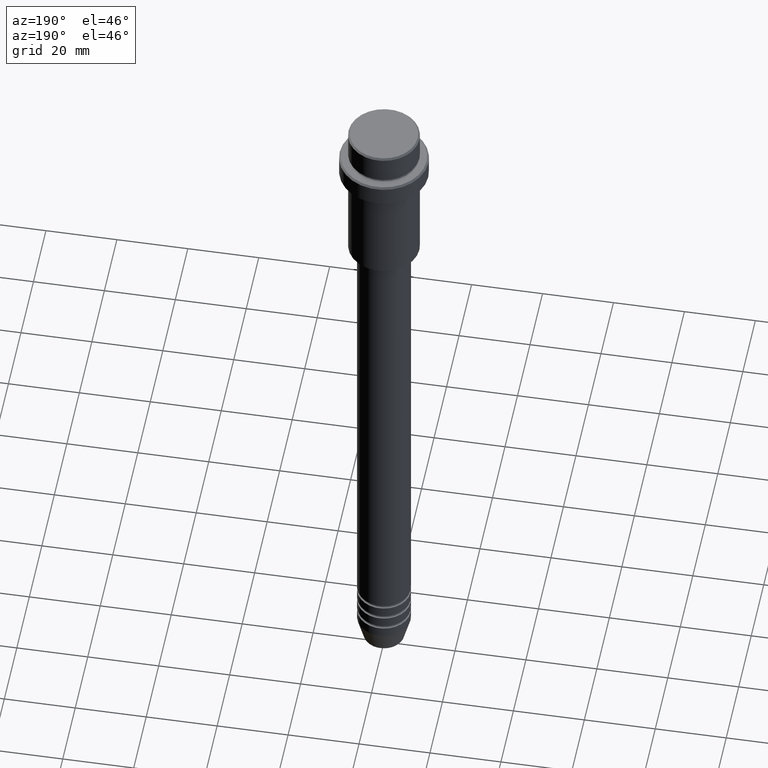
[diagram: clean part render]
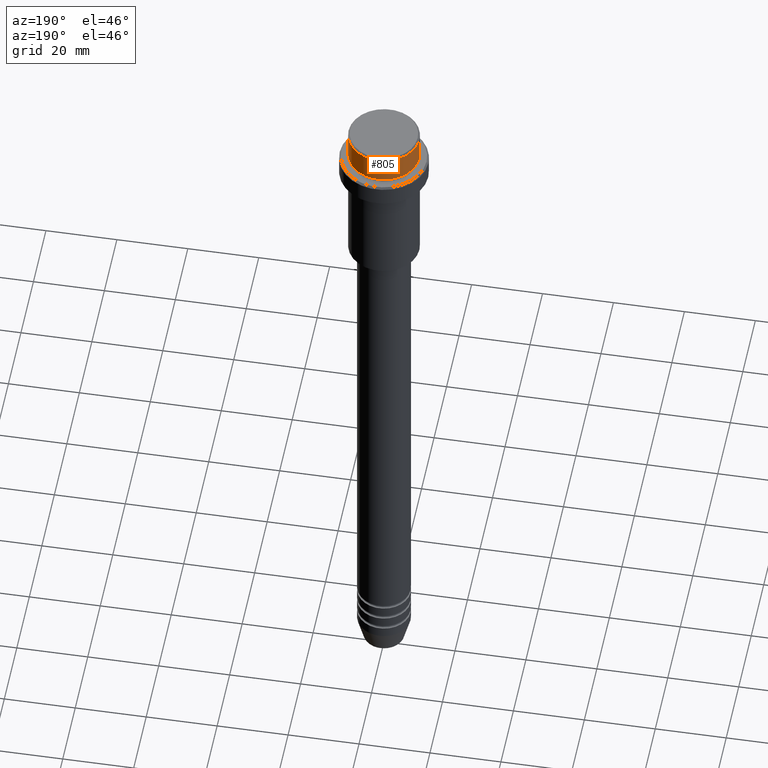
[diagram: same view with one face highlighted and labeled with its STEP entity id]
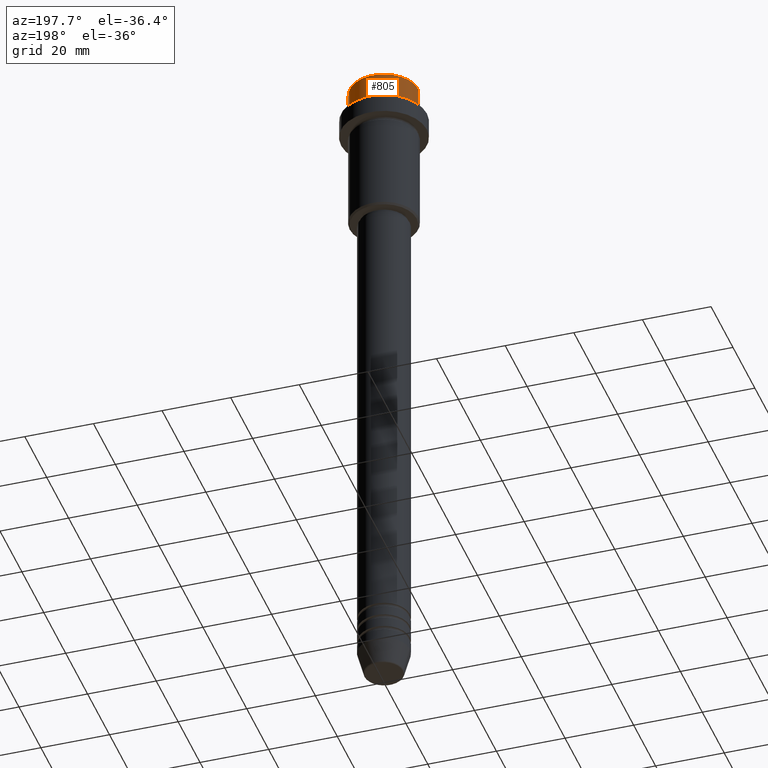
[diagram: same view with one face highlighted and labeled with its STEP entity id]
A machine part, auxiliary view. The second image highlights one B-rep face of the part: STEP entity #805.
A second angle (auxiliary view) of the same face is appended — the face is thin or edge-on in the first view.
In plain terms, the highlighted cylindrical surface (edge-blend (fillet) strip) has radius 10 mm, axis along (-0, -0, 1).
Its self-contained STEP definition (entity closure, byte-faithful):
#10 = AXIS2_PLACEMENT_3D ( 'NONE', #1068, #70, #1076 ) ;
#29 = LINE ( 'NONE', #917, #35 ) ;
#35 = VECTOR ( 'NONE', #145, 1000.000000000000000 ) ;
#70 = DIRECTION ( 'NONE',  ( 0.000000000000000000, 0.000000000000000000, -1.000000000000000000 ) ) ;
#98 = EDGE_LOOP ( 'NONE', ( #891, #1277, #469, #1334 ) ) ;
#145 = DIRECTION ( 'NONE',  ( -0.000000000000000000, -0.000000000000000000, 1.000000000000000000 ) ) ;
#151 = CIRCLE ( 'NONE', #10, 9.999999999999998224 ) ;
#161 = EDGE_CURVE ( 'NONE', #1142, #474, #961, .T. ) ;
#163 = FACE_OUTER_BOUND ( 'NONE', #98, .T. ) ;
#261 = DIRECTION ( 'NONE',  ( 1.000000000000000000, 0.000000000000000000, 0.000000000000000000 ) ) ;
#291 = VERTEX_POINT ( 'NONE', #1019 ) ;
#339 = CARTESIAN_POINT ( 'NONE',  ( 9.999999999999998224, 0.000000000000000000, 0.000000000000000000 ) ) ;
#404 = DIRECTION ( 'NONE',  ( -0.000000000000000000, -0.000000000000000000, 1.000000000000000000 ) ) ;
#412 = CARTESIAN_POINT ( 'NONE',  ( -9.999999999999998224, 1.224646799147353059E-15, -7.999999999999998224 ) ) ;
#469 = ORIENTED_EDGE ( 'NONE', *, *, #1011, .T. ) ;
#474 = VERTEX_POINT ( 'NONE', #1281 ) ;
#501 = CARTESIAN_POINT ( 'NONE',  ( 0.000000000000000000, 0.000000000000000000, -7.999999999999998224 ) ) ;
#521 = DIRECTION ( 'NONE',  ( 1.000000000000000000, 0.000000000000000000, 0.000000000000000000 ) ) ;
#600 = AXIS2_PLACEMENT_3D ( 'NONE', #501, #404, #521 ) ;
#645 = AXIS2_PLACEMENT_3D ( 'NONE', #906, #1140, #261 ) ;
#649 = CARTESIAN_POINT ( 'NONE',  ( 9.999999999999998224, 0.000000000000000000, -7.999999999999998224 ) ) ;
#805 = ADVANCED_FACE ( 'NONE', ( #163 ), #1364, .T. ) ;
#890 = VECTOR ( 'NONE', #1298, 1000.000000000000000 ) ;
#891 = ORIENTED_EDGE ( 'NONE', *, *, #1025, .T. ) ;
#906 = CARTESIAN_POINT ( 'NONE',  ( 0.000000000000000000, 0.000000000000000000, 0.000000000000000000 ) ) ;
#917 = CARTESIAN_POINT ( 'NONE',  ( -9.999999999999998224, 1.224646799147353059E-15, 0.000000000000000000 ) ) ;
#938 = CIRCLE ( 'NONE', #600, 9.999999999999998224 ) ;
#961 = LINE ( 'NONE', #339, #890 ) ;
#1011 = EDGE_CURVE ( 'NONE', #291, #474, #151, .T. ) ;
#1019 = CARTESIAN_POINT ( 'NONE',  ( -9.999999999999998224, 1.224646799147353059E-15, -0.4999999999999970024 ) ) ;
#1025 = EDGE_CURVE ( 'NONE', #1142, #1348, #938, .T. ) ;
#1068 = CARTESIAN_POINT ( 'NONE',  ( 0.000000000000000000, 0.000000000000000000, -0.4999999999999970024 ) ) ;
#1076 = DIRECTION ( 'NONE',  ( 1.000000000000000000, 0.000000000000000000, 0.000000000000000000 ) ) ;
#1140 = DIRECTION ( 'NONE',  ( -0.000000000000000000, -0.000000000000000000, 1.000000000000000000 ) ) ;
#1142 = VERTEX_POINT ( 'NONE', #649 ) ;
#1211 = EDGE_CURVE ( 'NONE', #1348, #291, #29, .T. ) ;
#1277 = ORIENTED_EDGE ( 'NONE', *, *, #1211, .T. ) ;
#1281 = CARTESIAN_POINT ( 'NONE',  ( 9.999999999999998224, 0.000000000000000000, -0.4999999999999970024 ) ) ;
#1298 = DIRECTION ( 'NONE',  ( -0.000000000000000000, -0.000000000000000000, 1.000000000000000000 ) ) ;
#1334 = ORIENTED_EDGE ( 'NONE', *, *, #161, .F. ) ;
#1348 = VERTEX_POINT ( 'NONE', #412 ) ;
#1364 = CYLINDRICAL_SURFACE ( 'NONE', #645, 9.999999999999998224 ) ;